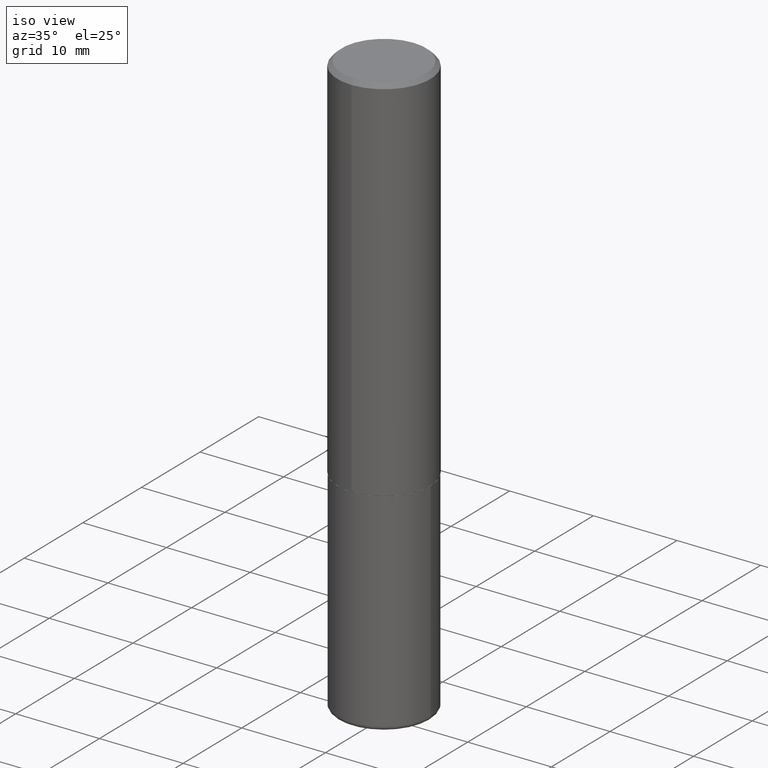
[diagram: clean part render]
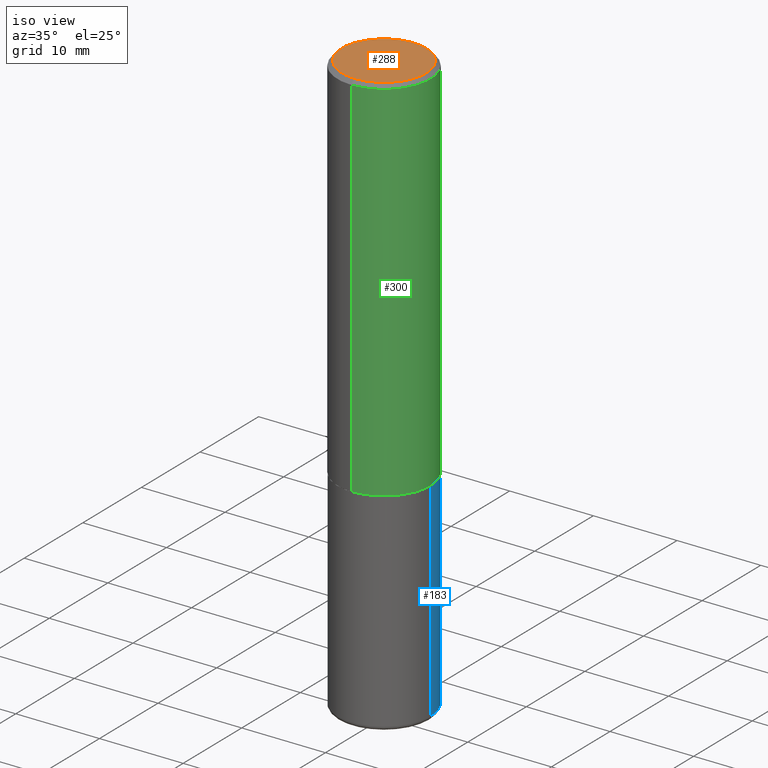
[diagram: same view with three faces highlighted in distinct colors, each labeled with its STEP entity id]
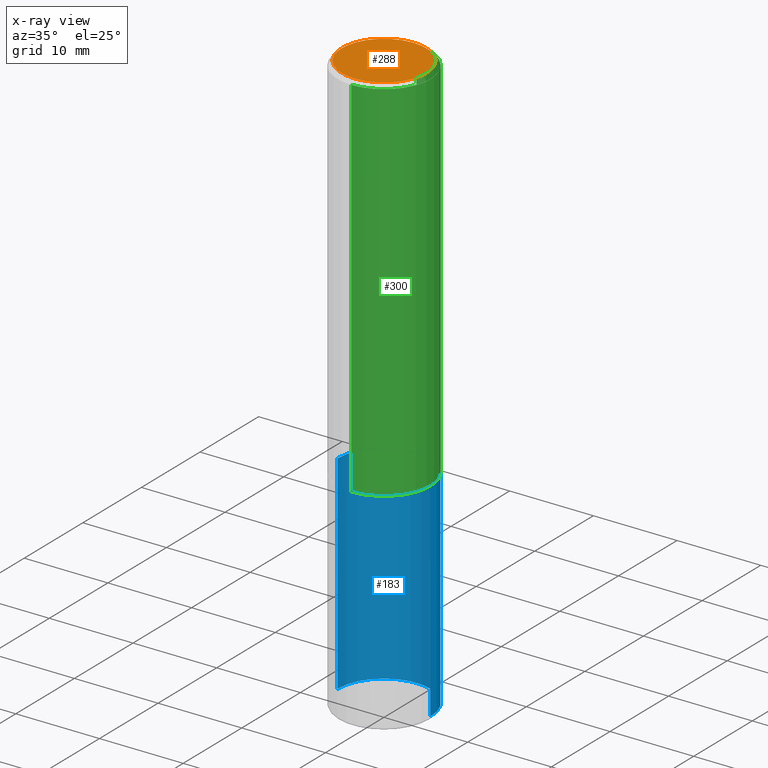
[diagram: x-ray of the same camera — body ghosted, the three highlighted faces saturated]
A machine part, iso view with three faces highlighted in distinct colors.
The next image is the same camera in x-ray (body ghosted, the three faces saturated) — at least one of them is partly hidden behind the body in this view.
Their STEP definitions:

[orange] entity #288 — the highlighted planar face has unit normal (0, -0, -1).
#6 = CIRCLE ( 'NONE', #299, 0.1987499999999998712 ) ;
#13 = VERTEX_POINT ( 'NONE', #17 ) ;
#17 = CARTESIAN_POINT ( 'NONE',  ( -1.432128957034806212E-15, -0.1987499999999998712, 8.349303828817255231E-16 ) ) ;
#21 = EDGE_CURVE ( 'NONE', #231, #13, #284, .T. ) ;
#45 = EDGE_CURVE ( 'NONE', #13, #231, #6, .T. ) ;
#63 = ORIENTED_EDGE ( 'NONE', *, *, #45, .T. ) ;
#78 = DIRECTION ( 'NONE',  ( -6.982962677686265133E-15, -1.000000000000000000, 3.491827388184873912E-15 ) ) ;
#97 = FACE_OUTER_BOUND ( 'NONE', #233, .T. ) ;
#99 = DIRECTION ( 'NONE',  ( 6.982962677686265922E-15, 1.000000000000000000, -3.491827388184874306E-15 ) ) ;
#155 = DIRECTION ( 'NONE',  ( -2.445227161221343579E-29, 3.491827388184874306E-15, 1.000000000000000000 ) ) ;
#157 = ORIENTED_EDGE ( 'NONE', *, *, #21, .T. ) ;
#165 = DIRECTION ( 'NONE',  ( 2.445227161221343299E-29, -3.491827388184874306E-15, -1.000000000000000000 ) ) ;
#178 = DIRECTION ( 'NONE',  ( -6.982962677686265133E-15, -1.000000000000000000, 3.491827388184873912E-15 ) ) ;
#193 = CARTESIAN_POINT ( 'NONE',  ( 1.457693458967007742E-15, 0.1987499999999998712, -5.530710039217610009E-16 ) ) ;
#196 = AXIS2_PLACEMENT_3D ( 'NONE', #242, #376, #78 ) ;
#231 = VERTEX_POINT ( 'NONE', #193 ) ;
#233 = EDGE_LOOP ( 'NONE', ( #157, #63 ) ) ;
#242 = CARTESIAN_POINT ( 'NONE',  ( -3.446051045389423421E-45, 4.921021495345916979E-31, 1.409296894799822118E-16 ) ) ;
#283 = CARTESIAN_POINT ( 'NONE',  ( -3.446051045389423421E-45, 4.921021495345916979E-31, 1.409296894799822118E-16 ) ) ;
#284 = CIRCLE ( 'NONE', #196, 0.1987499999999998712 ) ;
#288 = ADVANCED_FACE ( 'NONE', ( #97 ), #362, .F. ) ;
#299 = AXIS2_PLACEMENT_3D ( 'NONE', #283, #155, #178 ) ;
#352 = AXIS2_PLACEMENT_3D ( 'NONE', #400, #165, #99 ) ;
#362 = PLANE ( 'NONE',  #352 ) ;
#376 = DIRECTION ( 'NONE',  ( -2.445227161221343579E-29, 3.491827388184874306E-15, 1.000000000000000000 ) ) ;
#400 = CARTESIAN_POINT ( 'NONE',  ( 1.387863832190144247E-15, 0.1987499999999998712, -6.235358486617522300E-16 ) ) ;

[blue] entity #183 — the highlighted cylindrical surface (partial cylindrical patch) has radius 5.5562 mm, axis along (-0, 0, 1).
#15 = ORIENTED_EDGE ( 'NONE', *, *, #345, .F. ) ;
#24 = VECTOR ( 'NONE', #295, 39.37007874015748143 ) ;
#27 = DIRECTION ( 'NONE',  ( -2.445468806185136597E-29, 3.491481338843145583E-15, 1.000000000000000000 ) ) ;
#36 = ORIENTED_EDGE ( 'NONE', *, *, #107, .T. ) ;
#62 = CARTESIAN_POINT ( 'NONE',  ( -0.2187500000000000000, 1.554312234475219157E-15, -1.076017050993260622E-29 ) ) ;
#64 = CARTESIAN_POINT ( 'NONE',  ( 0.000000000000000000, 0.000000000000000000, 0.000000000000000000 ) ) ;
#70 = VERTEX_POINT ( 'NONE', #185 ) ;
#74 = ORIENTED_EDGE ( 'NONE', *, *, #88, .F. ) ;
#77 = CARTESIAN_POINT ( 'NONE',  ( -0.2187499999999999445, -7.977431820566568982E-15, -2.729999999999999982 ) ) ;
#80 = CIRCLE ( 'NONE', #327, 0.2187500000000000000 ) ;
#83 = DIRECTION ( 'NONE',  ( -2.445468806185136597E-29, 3.491481338843145583E-15, 1.000000000000000000 ) ) ;
#88 = EDGE_CURVE ( 'NONE', #392, #371, #80, .T. ) ;
#107 = EDGE_CURVE ( 'NONE', #70, #395, #248, .T. ) ;
#114 = CARTESIAN_POINT ( 'NONE',  ( 0.2187500000000000000, -1.527523085743870843E-15, 1.066663669705360885E-29 ) ) ;
#124 = DIRECTION ( 'NONE',  ( -2.445468806185136597E-29, 3.491481338843145583E-15, 1.000000000000000000 ) ) ;
#127 = CYLINDRICAL_SURFACE ( 'NONE', #173, 0.2187500000000000000 ) ;
#142 = LINE ( 'NONE', #114, #168 ) ;
#156 = LINE ( 'NONE', #62, #24 ) ;
#168 = VECTOR ( 'NONE', #341, 39.37007874015748143 ) ;
#169 = CARTESIAN_POINT ( 'NONE',  ( -0.2187500000000000000, -6.266605964533427643E-15, -1.750000000000000000 ) ) ;
#173 = AXIS2_PLACEMENT_3D ( 'NONE', #64, #27, #258 ) ;
#175 = ORIENTED_EDGE ( 'NONE', *, *, #195, .T. ) ;
#183 = ADVANCED_FACE ( 'NONE', ( #189 ), #127, .T. ) ;
#185 = CARTESIAN_POINT ( 'NONE',  ( 0.2187499999999999445, -1.105926714078565662E-14, -2.729999999999999982 ) ) ;
#189 = FACE_OUTER_BOUND ( 'NONE', #401, .T. ) ;
#195 = EDGE_CURVE ( 'NONE', #395, #371, #156, .T. ) ;
#203 = CARTESIAN_POINT ( 'NONE',  ( 0.2187500000000000000, -7.637615428719375514E-15, -1.750000000000000000 ) ) ;
#238 = AXIS2_PLACEMENT_3D ( 'NONE', #287, #83, #251 ) ;
#248 = CIRCLE ( 'NONE', #238, 0.2187500000000000000 ) ;
#251 = DIRECTION ( 'NONE',  ( 1.000000000000000000, -6.982962677686262766E-15, 0.000000000000000000 ) ) ;
#258 = DIRECTION ( 'NONE',  ( 1.000000000000000000, -6.982962677686266711E-15, 4.876176775795935232E-29 ) ) ;
#287 = CARTESIAN_POINT ( 'NONE',  ( 6.676129840885423672E-29, -9.531744055041786561E-15, -2.729999999999999982 ) ) ;
#293 = DIRECTION ( 'NONE',  ( 1.000000000000000000, -6.982962677686267499E-15, 0.000000000000000000 ) ) ;
#295 = DIRECTION ( 'NONE',  ( -2.445468806185136877E-29, 3.491481338843145188E-15, 1.000000000000000000 ) ) ;
#323 = CARTESIAN_POINT ( 'NONE',  ( 4.279570410823988484E-29, -6.110092342975504671E-15, -1.750000000000000000 ) ) ;
#327 = AXIS2_PLACEMENT_3D ( 'NONE', #323, #124, #293 ) ;
#341 = DIRECTION ( 'NONE',  ( -2.445468806185136877E-29, 3.491481338843145188E-15, 1.000000000000000000 ) ) ;
#345 = EDGE_CURVE ( 'NONE', #70, #392, #142, .T. ) ;
#371 = VERTEX_POINT ( 'NONE', #169 ) ;
#392 = VERTEX_POINT ( 'NONE', #203 ) ;
#395 = VERTEX_POINT ( 'NONE', #77 ) ;
#401 = EDGE_LOOP ( 'NONE', ( #36, #175, #74, #15 ) ) ;

[green] entity #300 — the highlighted cylindrical surface (partial cylindrical patch) has radius 5.5563 mm, axis along (-0, 0, 1).
#8 = EDGE_CURVE ( 'NONE', #330, #227, #75, .T. ) ;
#11 = CARTESIAN_POINT ( 'NONE',  ( -1.500733937012521740E-15, -0.2187500000000000555, -0.01999999999999928571 ) ) ;
#14 = DIRECTION ( 'NONE',  ( -2.445227161221343579E-29, 3.491827388184874306E-15, 1.000000000000000000 ) ) ;
#31 = EDGE_CURVE ( 'NONE', #159, #33, #53, .T. ) ;
#33 = VERTEX_POINT ( 'NONE', #214 ) ;
#41 = VECTOR ( 'NONE', #206, 39.37007874015748143 ) ;
#44 = CARTESIAN_POINT ( 'NONE',  ( -1.527523085743829033E-15, -0.2187500000000062728, -1.748999999999999000 ) ) ;
#53 = LINE ( 'NONE', #151, #416 ) ;
#69 = FACE_OUTER_BOUND ( 'NONE', #316, .T. ) ;
#75 = LINE ( 'NONE', #138, #41 ) ;
#79 = DIRECTION ( 'NONE',  ( -2.445227161221343579E-29, 3.491827388184874306E-15, 1.000000000000000000 ) ) ;
#125 = DIRECTION ( 'NONE',  ( -2.445227161221343579E-29, 3.491827388184874306E-15, 1.000000000000000000 ) ) ;
#132 = ORIENTED_EDGE ( 'NONE', *, *, #8, .F. ) ;
#138 = CARTESIAN_POINT ( 'NONE',  ( -1.527523085743871237E-15, -0.2187500000000000833, 7.638372411654415133E-16 ) ) ;
#151 = CARTESIAN_POINT ( 'NONE',  ( 1.554312234475219551E-15, 0.2187500000000000833, -7.638372411654415133E-16 ) ) ;
#159 = VERTEX_POINT ( 'NONE', #230 ) ;
#186 = DIRECTION ( 'NONE',  ( -2.445227161221343579E-29, 3.491827388184874306E-15, 1.000000000000000000 ) ) ;
#188 = CIRCLE ( 'NONE', #403, 0.2187500000000000000 ) ;
#200 = CYLINDRICAL_SURFACE ( 'NONE', #292, 0.2187500000000000833 ) ;
#206 = DIRECTION ( 'NONE',  ( -2.445227161221343579E-29, 3.491827388184874306E-15, 1.000000000000000000 ) ) ;
#214 = CARTESIAN_POINT ( 'NONE',  ( 1.527523085743871040E-15, 0.2187499999999999167, -0.02000000000000081574 ) ) ;
#227 = VERTEX_POINT ( 'NONE', #11 ) ;
#230 = CARTESIAN_POINT ( 'NONE',  ( 1.554312234475241442E-15, 0.2187499999999940603, -1.749000000000000554 ) ) ;
#269 = AXIS2_PLACEMENT_3D ( 'NONE', #378, #79, #373 ) ;
#272 = DIRECTION ( 'NONE',  ( -6.982962677686265133E-15, -1.000000000000000000, 3.492862791899308071E-15 ) ) ;
#285 = CIRCLE ( 'NONE', #269, 0.2187500000000001665 ) ;
#292 = AXIS2_PLACEMENT_3D ( 'NONE', #305, #125, #389 ) ;
#300 = ADVANCED_FACE ( 'NONE', ( #69 ), #200, .T. ) ;
#302 = ORIENTED_EDGE ( 'NONE', *, *, #320, .F. ) ;
#305 = CARTESIAN_POINT ( 'NONE',  ( 0.000000000000000000, 0.000000000000000000, 0.000000000000000000 ) ) ;
#306 = ORIENTED_EDGE ( 'NONE', *, *, #415, .T. ) ;
#316 = EDGE_LOOP ( 'NONE', ( #306, #408, #302, #132 ) ) ;
#320 = EDGE_CURVE ( 'NONE', #227, #33, #188, .T. ) ;
#330 = VERTEX_POINT ( 'NONE', #44 ) ;
#373 = DIRECTION ( 'NONE',  ( -6.982962677686265133E-15, -1.000000000000000000, 3.746534391310986401E-15 ) ) ;
#378 = CARTESIAN_POINT ( 'NONE',  ( 4.276702304976129224E-29, -6.107206101935344019E-15, -1.748999999999999888 ) ) ;
#389 = DIRECTION ( 'NONE',  ( -6.982962677686265922E-15, -1.000000000000000000, 3.491827388184874306E-15 ) ) ;
#403 = AXIS2_PLACEMENT_3D ( 'NONE', #407, #14, #272 ) ;
#407 = CARTESIAN_POINT ( 'NONE',  ( 4.890454322442699524E-31, -6.983654776369765967E-17, -0.02000000000000005246 ) ) ;
#408 = ORIENTED_EDGE ( 'NONE', *, *, #31, .T. ) ;
#415 = EDGE_CURVE ( 'NONE', #330, #159, #285, .T. ) ;
#416 = VECTOR ( 'NONE', #186, 39.37007874015748143 ) ;